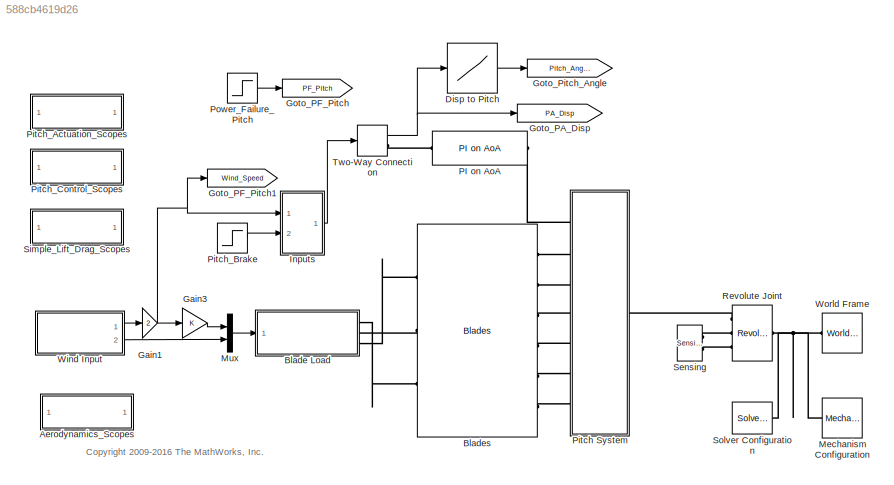
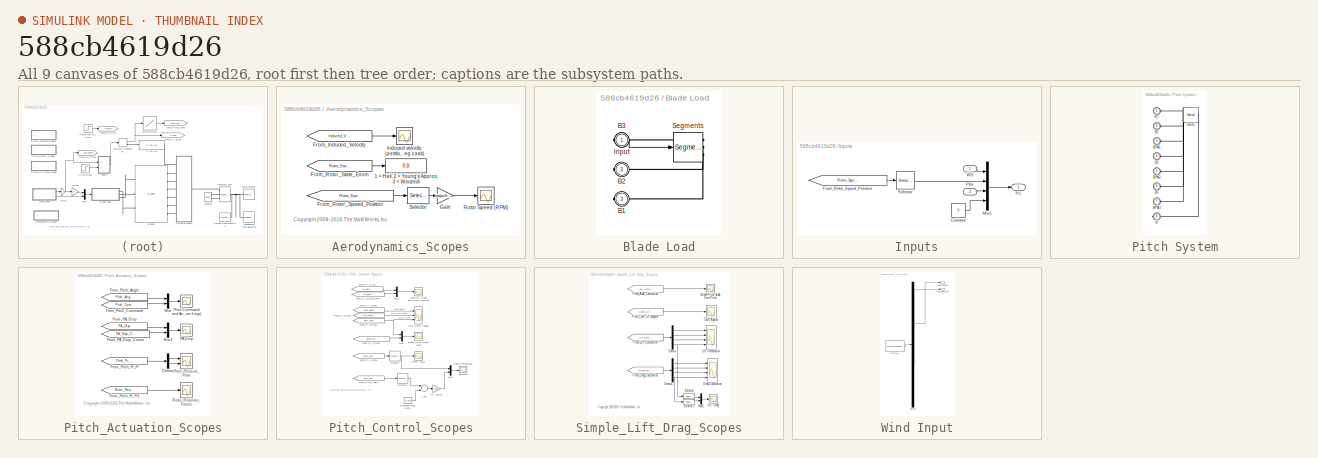
[diagram: thumbnail index - all 9 canvases of the model, root first then tree order]
MODEL slx_588cb4619d26
KIND model
CONFIG AbsTol = auto
CONFIG FixedStep = auto
CONFIG MaxStep = auto
CONFIG MinStep = auto
CONFIG PostLoadFcn = warning off Simulink:blocks:MatchingGotoNotFound \nwarning off Simulink:blocks:MatchingFromNotFound \nwarning off Simulink:Engine:UsingDefaultMaxStepSize 
CONFIG RelTol = 1e-5
CONFIG SampleTimeConstraint = Unconstrained
CONFIG Solver = ode23t
CONFIG SolverMode = Auto
CONFIG SolverName = ode23t
CONFIG StartTime = 0.0
CONFIG StopTime = 400
BLOCK [SubSystem] Aerodynamics_Scopes
  AncestorBlock = Wind_Lib/Simple_Lift_Drag_Scopes
  Ports = []
  RequestExecContextInheritance = off
  Variant = off
BLOCK [Display] Aerodynamics_Scopes/1 = Heli, 2 = Young's Approx, 3 = Windmill
  Decimation = 1
  Ports = [1]
BLOCK [From] Aerodynamics_Scopes/From_Induced_Velocity
  CloseFcn = tagdialog Close
  GotoTag = Induced_Velocity
BLOCK [From] Aerodynamics_Scopes/From_Rotor_Speed_Position
  CloseFcn = tagdialog Close
  GotoTag = Rotor_Speed_Position
  TagVisibility = global
BLOCK [From] Aerodynamics_Scopes/From_Rotor_State_Enum
  CloseFcn = tagdialog Close
  GotoTag = Rotor_State_Enum
  TagVisibility = global
BLOCK [Gain] Aerodynamics_Scopes/Gain
  Gain = radps2rpm
  OutDataTypeStr = Inherit: Inherit via internal rule
  ParamDataTypeStr = Inherit: Inherit via internal rule
  SaturateOnIntegerOverflow = off
BLOCK [Scope] Aerodynamics_Scopes/Rotor Speed (RPM)
  Ports = [1]
  ScopeSpecificationString = C++SS(StrPVP('Location','[811, 66, 1175, 340]'),StrPVP('Open','off'),MxPVP('AxesTitles',24,'struct(''axes1'',''%<SignalLabel>'')'),StrPVP('TimeRange','80'),StrPVP('YMin','0'),StrPVP('YMax','12'),StrPVP('SaveName','ScopeData11'),StrPVP('DataFormat','StructureWithTime'),StrPVP('LimitDataPoints','off'),StrPVP('BlockParamSampleTime','0'),StrPVP('DataLoggingDecimation','1'),StrPVP('BlockParamSampleInpu...<+323ch>
BLOCK [Selector] Aerodynamics_Scopes/Selector
  IndexOptions = Index vector (dialog)
  Indices = [2]
  InputPortWidth = 2
  OutputSizes = 1
  Ports = [1, 1]
BLOCK [Scope] Aerodynamics_Scopes/induced velocity (positive in neg x axis)
  Ports = [1]
  ScopeSpecificationString = C++SS(StrPVP('Location','[7, 726, 368, 992]'),StrPVP('Open','off'),MxPVP('AxesTitles',24,'struct(''axes1'',''%<SignalLabel>'')'),StrPVP('TimeRange','100'),StrPVP('YMin','-8'),StrPVP('YMax','4'),StrPVP('SaveName','ScopeData12'),StrPVP('DataFormat','StructureWithTime'),StrPVP('LimitDataPoints','off'),StrPVP('BlockParamSampleTime','0'),StrPVP('DataLoggingDecimation','1'),StrPVP('BlockParamSampleInput...<+322ch>
BLOCK [SubSystem] Blade Load
  AttributesFormatString = %<BlockChoice>
  BlockChoice = Segments
  MemberBlocks = Lift and Drag,Lift and Drag Simscape,Segments,Torque
  Ports = [1, 0, 0, 0, 0, 0, 3]
  RequestExecContextInheritance = off
  TemplateBlock = Wind_Lib/Blade Load
  Variant = off
BLOCK [PMIOPort] Blade Load/B1
  Port = 3
  Side = Right
BLOCK [PMIOPort] Blade Load/B2
  Port = 2
  Side = Right
BLOCK [PMIOPort] Blade Load/B3
  Port = 1
  Side = Right
BLOCK [Inport] Blade Load/Input
  IconDisplay = Port number
BLOCK [Reference] Blade Load/Segments  REF=Wind_Lib/Segments
  Ports = [1, 0, 0, 0, 0, 0, 3]
  SourceBlock = Wind_Lib/Segments
BLOCK [Reference] Blades  REF=Blades_Lib/Blades
  Ports = [0, 0, 0, 0, 0, 6, 3]
  SourceBlock = Blades_Lib/Blades
BLOCK [Lookup] Disp to Pitch
  InputValues = Actuator_Lookup.extension
  SaturateOnIntegerOverflow = off
  Table = Actuator_Lookup.angle
BLOCK [Gain] Gain1
  Gain = 2
  OutDataTypeStr = Inherit: Inherit via internal rule
  ParamDataTypeStr = Inherit: Inherit via internal rule
  SaturateOnIntegerOverflow = off
BLOCK [Gain] Gain3
  OutDataTypeStr = Inherit: Inherit via internal rule
  ParamDataTypeStr = Inherit: Inherit via internal rule
  SaturateOnIntegerOverflow = off
BLOCK [Goto] Goto_PA_Disp
  GotoTag = PA_Disp
  TagVisibility = global
BLOCK [Goto] Goto_PF_Pitch
  GotoTag = PF_Pitch
  TagVisibility = global
BLOCK [Goto] Goto_PF_Pitch1
  GotoTag = Wind_Speed
  TagVisibility = global
BLOCK [Goto] Goto_Pitch_Angle
  GotoTag = Pitch_Angle
  TagVisibility = global
BLOCK [SubSystem] Inputs
  Ports = [2, 1]
  RequestExecContextInheritance = off
  Variant = off
BLOCK [Constant] Inputs/Constant
  Value = 0
BLOCK [From] Inputs/From_Rotor_Speed_Position
  CloseFcn = tagdialog Close
  GotoTag = Rotor_Speed_Position
  TagVisibility = global
BLOCK [Mux] Inputs/Mux1
  DisplayOption = bar
  Ports = [4, 1]
BLOCK [Inport] Inputs/PBr
  IconDisplay = Port number
  Port = 2
BLOCK [Outport] Inputs/PC
  IconDisplay = Port number
BLOCK [Selector] Inputs/Selector
  IndexOptions = Index vector (dialog)
  Indices = [2]
  InputPortWidth = 2
  OutputSizes = 1
  Ports = [1, 1]
BLOCK [Inport] Inputs/WS
  IconDisplay = Port number
BLOCK [Reference] Mechanism Configuration  REF=sm_lib/Utilities/Mechanism
Configuration
  Ports = [0, 0, 0, 0, 0, 0, 1]
  SourceBlock = sm_lib/Utilities/Mechanism\nConfiguration
  SourceType = Mechanism\nConfiguration
BLOCK [Mux] Mux
  DisplayOption = bar
  Inputs = 2
  Ports = [2, 1]
BLOCK [Reference] PI on AoA  REF=Pitch_Controller_Lib/PI on AoA
  Ports = [0, 0, 0, 0, 0, 1, 1]
  SourceBlock = Pitch_Controller_Lib/PI on AoA
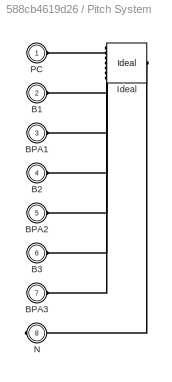
BLOCK [SubSystem] Pitch System
  AttributesFormatString = %<BlockChoice>
  BlockChoice = Ideal
  MemberBlocks = Hydraulic,Ideal,Locked
  Ports = [0, 0, 0, 0, 0, 7, 1]
  RequestExecContextInheritance = off
  ShowPortLabels = FromPortBlockName
  TemplateBlock = Pitch_System_Lib/Pitch System
  Variant = off
BLOCK [PMIOPort] Pitch System/B1
  Port = 2
  Side = Left
BLOCK [PMIOPort] Pitch System/B2
  Port = 4
  Side = Left
BLOCK [PMIOPort] Pitch System/B3
  Port = 6
  Side = Left
BLOCK [PMIOPort] Pitch System/BPA1
  Port = 3
  Side = Left
BLOCK [PMIOPort] Pitch System/BPA2
  Port = 5
  Side = Left
BLOCK [PMIOPort] Pitch System/BPA3
  Port = 7
  Side = Left
BLOCK [Reference] Pitch System/Ideal  REF=Pitch_System_Lib/Ideal
  Ports = [0, 0, 0, 0, 0, 7, 1]
  SourceBlock = Pitch_System_Lib/Ideal
BLOCK [PMIOPort] Pitch System/N
  Port = 8
  Side = Right
BLOCK [PMIOPort] Pitch System/PC
  Port = 1
  Side = Left
BLOCK [SubSystem] Pitch_Actuation_Scopes
  Ports = []
  RequestExecContextInheritance = off
  Variant = off
BLOCK [Demux] Pitch_Actuation_Scopes/Demux
  DisplayOption = bar
  Outputs = [2 1]
  Ports = [1, 2]
BLOCK [From] Pitch_Actuation_Scopes/From_PA_Disp
  CloseFcn = tagdialog Close
  GotoTag = PA_Disp
  TagVisibility = global
BLOCK [From] Pitch_Actuation_Scopes/From_PA_Disp_Comm
  CloseFcn = tagdialog Close
  GotoTag = PA_Disp_Comm
BLOCK [From] Pitch_Actuation_Scopes/From_Pitch_Angle
  CloseFcn = tagdialog Close
  GotoTag = Pitch_Angle
  TagVisibility = global
BLOCK [From] Pitch_Actuation_Scopes/From_Pitch_Command
  CloseFcn = tagdialog Close
  GotoTag = Pitch_Command
  TagVisibility = global
BLOCK [From] Pitch_Actuation_Scopes/From_Pitch_Pr_Fl
  CloseFcn = tagdialog Close
  GotoTag = Pitch_Pr_Fl
  TagVisibility = global
BLOCK [From] Pitch_Actuation_Scopes/From_Pitch_Pr_Fl1
  CloseFcn = tagdialog Close
  GotoTag = Rotor_Reaction_Forces
BLOCK [Mux] Pitch_Actuation_Scopes/Mux
  DisplayOption = bar
  Inputs = 2
  Ports = [2, 1]
BLOCK [Mux] Pitch_Actuation_Scopes/Mux2
  DisplayOption = bar
  Inputs = 2
  Ports = [2, 1]
BLOCK [Scope] Pitch_Actuation_Scopes/PA Disp
  Ports = [1]
  ScopeSpecificationString = C++SS(StrPVP('Location','[38, 56, 510, 479]'),StrPVP('Open','off'),MxPVP('AxesTitles',24,'struct(''axes1'',''%<SignalLabel>'')'),StrPVP('TimeRange','10'),StrPVP('YMin','-1.6'),StrPVP('YMax','-0.9'),StrPVP('SaveName','ScopeData1'),StrPVP('DataFormat','StructureWithTime'),StrPVP('LimitDataPoints','off'),StrPVP('BlockParamSampleTime','0'),StrPVP('DataLoggingDecimation','1'),StrPVP('BlockParamSampleIn...<+325ch>
BLOCK [Scope] Pitch_Actuation_Scopes/Pitch Command and Angle (Inner Loop)
  Ports = [1]
  ScopeSpecificationString = Simulink.scopes.TimeScopeBlockCfg('CurrentConfiguration', extmgr.ConfigurationSet(extmgr.Configuration('Core','General UI',true),extmgr.Configuration('Core','Source UI',true),extmgr.Configuration('Sources','WiredSimulink',true,'DataLoggingSaveFormat','StructureWithTime','DataLoggingDecimation','1'),extmgr.Configuration('Visuals','Time Domain',true,'SerializedDisplays',{struct('MinYLimReal','-20','...<+1641ch>
BLOCK [Scope] Pitch_Actuation_Scopes/Pitch_Pressure_Flow
  NumInputPorts = 2
  Ports = [2]
  ScopeSpecificationString = C++SS(StrPVP('Location','[516, 529, 997, 989]'),StrPVP('Open','off'),MxPVP('AxesTitles',24,'struct(''axes1'',''%<SignalLabel>'',''axes2'',''%<SignalLabel>'')'),StrPVP('TimeRange','10'),StrPVP('YMin','-5000000~-0.005'),StrPVP('YMax','25000000~0.015'),StrPVP('SaveName','ScopeData3'),StrPVP('DataFormat','StructureWithTime'),StrPVP('LimitDataPoints','off'),StrPVP('BlockParamSampleTime','0'),StrPVP('Da...<+377ch>
BLOCK [Scope] Pitch_Actuation_Scopes/Rotor_Reaction_Forces
  Ports = [1]
  ScopeSpecificationString = C++SS(StrPVP('Location','[516, 529, 997, 989]'),StrPVP('Open','off'),StrPVP('ZoomMode','xonly'),MxPVP('AxesTitles',24,'struct(''axes1'',''%<SignalLabel>'')'),StrPVP('TimeRange','10'),StrPVP('YMin','-5e+006'),StrPVP('YMax','2.5e+007'),StrPVP('SaveName','ScopeData15'),StrPVP('DataFormat','StructureWithTime'),StrPVP('LimitDataPoints','off'),StrPVP('BlockParamSampleTime','0'),StrPVP('DataLoggingDecima...<+362ch>
BLOCK [Step] Pitch_Brake
  After = 0
  SampleTime = 0
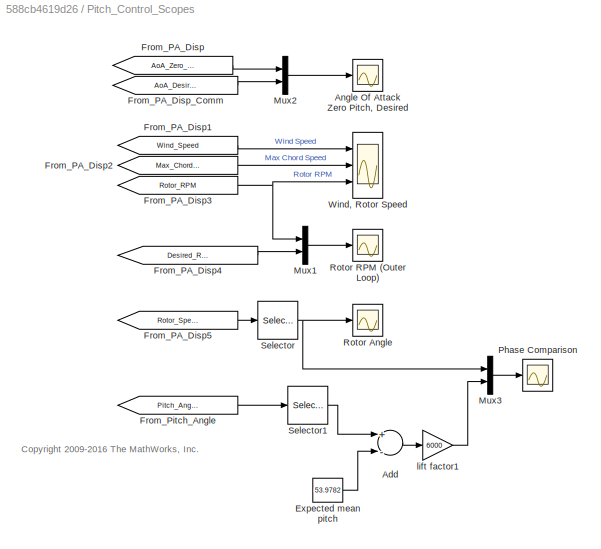
BLOCK [SubSystem] Pitch_Control_Scopes
  Ports = []
  RequestExecContextInheritance = off
  Variant = off
BLOCK [Sum] Pitch_Control_Scopes/Add
  InputSameDT = off
  Inputs = +-
  OutDataTypeStr = Inherit: Inherit via internal rule
  Ports = [2, 1]
  SaturateOnIntegerOverflow = off
BLOCK [Scope] Pitch_Control_Scopes/Angle Of Attack Zero Pitch, Desired
  Ports = [1]
  ScopeSpecificationString = C++SS(StrPVP('Location','[25, 642, 426, 909]'),StrPVP('Open','off'),StrPVP('ZoomMode','yonly'),MxPVP('AxesTitles',24,'struct(''axes1'',''%<SignalLabel>'')'),StrPVP('TimeRange','400'),StrPVP('YMin','-40'),StrPVP('YMax','100'),StrPVP('SaveName','ScopeData1'),StrPVP('DataFormat','StructureWithTime'),StrPVP('LimitDataPoints','off'),StrPVP('BlockParamSampleTime','0'),StrPVP('DataLoggingDecimation','1')...<+352ch>
BLOCK [Constant] Pitch_Control_Scopes/Expected mean pitch
  Value = 53.9782
BLOCK [From] Pitch_Control_Scopes/From_PA_Disp
  CloseFcn = tagdialog Close
  GotoTag = AoA_Zero_Pitch
BLOCK [From] Pitch_Control_Scopes/From_PA_Disp1
  CloseFcn = tagdialog Close
  GotoTag = Wind_Speed
  TagVisibility = global
BLOCK [From] Pitch_Control_Scopes/From_PA_Disp2
  CloseFcn = tagdialog Close
  GotoTag = Max_Chord_Speed
  TagVisibility = global
BLOCK [From] Pitch_Control_Scopes/From_PA_Disp3
  CloseFcn = tagdialog Close
  GotoTag = Rotor_RPM
  TagVisibility = global
BLOCK [From] Pitch_Control_Scopes/From_PA_Disp4
  CloseFcn = tagdialog Close
  GotoTag = Desired_Rotor_RPM
  TagVisibility = global
BLOCK [From] Pitch_Control_Scopes/From_PA_Disp5
  CloseFcn = tagdialog Close
  GotoTag = Rotor_Speed_Position
  TagVisibility = global
BLOCK [From] Pitch_Control_Scopes/From_PA_Disp_Comm
  CloseFcn = tagdialog Close
  GotoTag = AoA_Desired
  TagVisibility = global
BLOCK [From] Pitch_Control_Scopes/From_Pitch_Angle
  CloseFcn = tagdialog Close
  GotoTag = Pitch_Angle
  TagVisibility = global
BLOCK [Mux] Pitch_Control_Scopes/Mux1
  DisplayOption = bar
  Inputs = 2
  Ports = [2, 1]
BLOCK [Mux] Pitch_Control_Scopes/Mux2
  DisplayOption = bar
  Inputs = 2
  Ports = [2, 1]
BLOCK [Mux] Pitch_Control_Scopes/Mux3
  DisplayOption = bar
  Inputs = 2
  Ports = [2, 1]
BLOCK [Scope] Pitch_Control_Scopes/Phase Comparison
  Ports = [1]
  ScopeSpecificationString = C++SS(StrPVP('Location','[747, 210, 1533, 544]'),StrPVP('Open','off'),StrPVP('ZoomMode','xonly'),MxPVP('AxesTitles',24,'struct(''axes1'',''%<SignalLabel>'')'),StrPVP('TimeRange','10.02528256989888'),StrPVP('YMin','-4'),StrPVP('YMax','4'),StrPVP('SaveName','ScopeData16'),StrPVP('DataFormat','StructureWithTime'),StrPVP('LimitDataPoints','off'),StrPVP('BlockParamSampleTime','0'),StrPVP('DataLoggingDe...<+366ch>
BLOCK [Scope] Pitch_Control_Scopes/Rotor Angle
  Ports = [1]
  ScopeSpecificationString = C++SS(StrPVP('Location','[831, 319, 1387, 586]'),StrPVP('Open','off'),StrPVP('ZoomMode','xonly'),MxPVP('AxesTitles',24,'struct(''axes1'',''%<SignalLabel>'')'),StrPVP('TimeRange','10.02528256989888'),StrPVP('YMin','-4'),StrPVP('YMax','4'),StrPVP('SaveName','ScopeData7'),StrPVP('DataFormat','StructureWithTime'),StrPVP('LimitDataPoints','off'),StrPVP('BlockParamSampleTime','0'),StrPVP('DataLoggingDec...<+365ch>
BLOCK [Scope] Pitch_Control_Scopes/Rotor RPM (Outer Loop)
  Ports = [1]
  ScopeSpecificationString = C++SS(StrPVP('Location','[475, 363, 1019, 608]'),StrPVP('Open','off'),StrPVP('ZoomMode','yonly'),MxPVP('AxesTitles',24,'struct(''axes1'',''%<SignalLabel>'')'),MxPVP('ScopeGraphics',28,'struct(''FigureColor'',''[0.5 0.5 0.5]'',''AxesColor'',''[0 0 0]'',''AxesTickColor'',''[1 1 1]'',''LineColors'',''[1 1 0;1 0 1;0 1 1;1 0 0;0 1 0;0 0 1]'',''LineStyles'',''-|-|-|-|-|-'',''LineWidths'',''[0.5 0.5 0.5 ...<+643ch>
BLOCK [Selector] Pitch_Control_Scopes/Selector
  IndexOptions = Index vector (dialog)
  Indices = [1]
  InputPortWidth = 2
  OutputSizes = 1
  Ports = [1, 1]
BLOCK [Selector] Pitch_Control_Scopes/Selector1
  IndexOptions = Index vector (dialog)
  Indices = [1]
  InputPortWidth = 3
  OutputSizes = 1
  Ports = [1, 1]
BLOCK [Scope] Pitch_Control_Scopes/Wind, Rotor Speed
  NumInputPorts = 3
  Ports = [3]
  ScopeSpecificationString = C++SS(StrPVP('Location','[392, 580, 861, 989]'),StrPVP('Open','off'),StrPVP('ZoomMode','yonly'),MxPVP('AxesTitles',24,'struct(''axes1'',''%<SignalLabel>'',''axes2'',''%<SignalLabel>'',''axes3'',''%<SignalLabel>'')'),StrPVP('TimeRange','600'),StrPVP('YMin','5~-10~-10'),StrPVP('YMax','15~20~20'),StrPVP('SaveName','ScopeData2'),StrPVP('DataFormat','StructureWithTime'),StrPVP('LimitDataPoints','off'),...<+422ch>
BLOCK [Gain] Pitch_Control_Scopes/lift factor1
  Gain = 6000
  OutDataTypeStr = Inherit: Inherit via internal rule
  ParamDataTypeStr = Inherit: Inherit via internal rule
  SaturateOnIntegerOverflow = off
BLOCK [Step] Power_Failure_Pitch
  After = 24
  Before = 24
  SampleTime = 0
  Time = 5
BLOCK [Reference] Revolute Joint  REF=sm_lib/Joints/Revolute Joint
  Ports = [0, 0, 0, 0, 0, 1, 3]
  SourceBlock = sm_lib/Joints/Revolute Joint
  SourceType = Revolute Joint
BLOCK [Reference] Sensing  REF=Hub_Axis_Lib/Rotate/Sensing
  Ports = [0, 0, 0, 0, 0, 2]
  SourceBlock = Hub_Axis_Lib/Rotate/Sensing
  SourceType = SubSystem
BLOCK [SubSystem] Simple_Lift_Drag_Scopes
  AncestorBlock = Wind_Lib/Simple_Lift_Drag_Scopes
  Ports = []
  RequestExecContextInheritance = off
  Variant = off
BLOCK [Scope] Simple_Lift_Drag_Scopes/Blade Pitch, AoA Zero Pitch
  Ports = [1]
  ScopeSpecificationString = C++SS(StrPVP('Location','[718, 513, 1103, 780]'),StrPVP('Open','off'),MxPVP('AxesTitles',24,'struct(''axes1'',''%<SignalLabel>'')'),StrPVP('TimeRange','400'),StrPVP('YMin','0'),StrPVP('YMax','100'),StrPVP('SaveName','ScopeData3'),StrPVP('DataFormat','StructureWithTime'),StrPVP('LimitDataPoints','off'),StrPVP('BlockParamSampleTime','0'),StrPVP('DataLoggingDecimation','1'),StrPVP('BlockParamSampleIn...<+325ch>
BLOCK [Scope] Simple_Lift_Drag_Scopes/Coeff Approx
  Ports = [1]
  ScopeSpecificationString = C++SS(StrPVP('Location','[692, 281, 1164, 834]'),StrPVP('Open','off'),StrPVP('ZoomMode','yonly'),MxPVP('AxesTitles',24,'struct(''axes1'',''%<SignalLabel>'')'),StrPVP('TimeRange','400'),StrPVP('YMin','-0.1139986551164904'),StrPVP('YMax','0.01794057021302797'),StrPVP('SaveName','ScopeData4'),StrPVP('DataFormat','StructureWithTime'),StrPVP('LimitDataPoints','off'),StrPVP('BlockParamSampleTime','0'),S...<+386ch>
BLOCK [Demux] Simple_Lift_Drag_Scopes/Demux
  DisplayOption = bar
  Outputs = [1 3 3 3]
  Ports = [1, 4]
BLOCK [Demux] Simple_Lift_Drag_Scopes/Demux1
  DisplayOption = bar
  Outputs = [1 3 3 3]
  Ports = [1, 4]
BLOCK [Scope] Simple_Lift_Drag_Scopes/Drag Calculation
  NumInputPorts = 4
  Ports = [4]
  ScopeSpecificationString = C++SS(StrPVP('Location','[84, 409, 556, 962]'),StrPVP('Open','off'),StrPVP('ZoomMode','yonly'),MxPVP('AxesTitles',24,'struct(''axes1'',''%<SignalLabel>'',''axes2'',''%<SignalLabel>'',''axes3'',''%<SignalLabel>'',''axes4'',''%<SignalLabel>'')'),StrPVP('TimeRange','400'),StrPVP('YMin','-2000~-50~0~0'),StrPVP('YMax','4000~100~6000~6000'),StrPVP('SaveName','ScopeData5'),StrPVP('DataFormat','StructureW...<+464ch>
BLOCK [From] Simple_Lift_Drag_Scopes/From_AoA_Calculation
  CloseFcn = tagdialog Close
  GotoTag = AoA_Calculation
BLOCK [From] Simple_Lift_Drag_Scopes/From_Coeff_Lift_Approx
  CloseFcn = tagdialog Close
  GotoTag = Coeff_Lift_Approx
BLOCK [From] Simple_Lift_Drag_Scopes/From_Drag_Calculation
  CloseFcn = tagdialog Close
  GotoTag = Drag_Calculation
BLOCK [From] Simple_Lift_Drag_Scopes/From_Lift_Calculation
  CloseFcn = tagdialog Close
  GotoTag = Lift_Calculation
BLOCK [Scope] Simple_Lift_Drag_Scopes/Lift Calculation
  NumInputPorts = 4
  Ports = [4]
  ScopeSpecificationString = C++SS(StrPVP('Location','[857, 373, 1367, 926]'),StrPVP('Open','off'),StrPVP('ZoomMode','yonly'),MxPVP('AxesTitles',24,'struct(''axes1'',''%<SignalLabel>'',''axes2'',''%<SignalLabel>'',''axes3'',''%<SignalLabel>'',''axes4'',''%<SignalLabel>'')'),StrPVP('TimeRange','400'),StrPVP('YMin','0~-50~-0.5~-50000'),StrPVP('YMax','2000~100~1.5~100000'),StrPVP('SaveName','ScopeData2'),StrPVP('DataFormat','Str...<+471ch>
BLOCK [Scope] Simple_Lift_Drag_Scopes/Lift, Drag
  Ports = [1]
  ScopeSpecificationString = C++SS(StrPVP('Location','[828, 640, 1384, 907]'),StrPVP('Open','off'),StrPVP('ZoomMode','xonly'),MxPVP('AxesTitles',24,'struct(''axes1'',''%<SignalLabel>'')'),StrPVP('TimeRange','160'),StrPVP('YMin','-250.4351759669439'),StrPVP('YMax','408.3026221352307'),StrPVP('SaveName','ScopeData1'),StrPVP('DataFormat','StructureWithTime'),StrPVP('LimitDataPoints','off'),StrPVP('BlockParamSampleTime','0'),StrP...<+383ch>
BLOCK [Mux] Simple_Lift_Drag_Scopes/Mux1
  DisplayOption = bar
  Inputs = 2
  Ports = [2, 1]
BLOCK [Selector] Simple_Lift_Drag_Scopes/Selector
  IndexOptions = Index vector (dialog)
  Indices = [1]
  InputPortWidth = 3
  OutputSizes = 1
  Ports = [1, 1]
BLOCK [Selector] Simple_Lift_Drag_Scopes/Selector1
  IndexOptions = Index vector (dialog)
  Indices = [1 3]
  InputPortWidth = 3
  OutputSizes = 1
  Ports = [1, 1]
BLOCK [Reference] Solver Configuration  REF=nesl_utility/Solver
Configuration
  Ports = [0, 0, 0, 0, 0, 0, 1]
  SourceBlock = nesl_utility/Solver\nConfiguration
  SourceType = Solver\nConfiguration
BLOCK [TwoWayConnection] Two-Way Connection
  Ports = [1, 1, 0, 0, 0, 0, 1]
BLOCK [SubSystem] Wind Input
  ClipboardFcn = sigbuilder_block('clipboard');
  CloseFcn = sigbuilder_block('close');
  ContinueFcn = sigbuilder_block('continue')
  CopyFcn = sigbuilder_block('copy');
  DeleteFcn = sigbuilder_block('delete');
  LoadFcn = sigbuilder_block('load');
  MaskHideContents = on
  ModelCloseFcn = sigbuilder_block('modelClose');
  NameChangeFcn = sigbuilder_block('namechange');
  OpenFcn = sigbuilder_block('open',[33 180 762 399.75 ]);
  PauseFcn = sigbuilder_block('pause')
  Ports = [0, 2]
  PreSaveFcn = sigbuilder_block('preSave');
  RequestExecContextInheritance = off
  StartFcn = sigbuilder_block('start');
  StopFcn = sigbuilder_block('stop');
  Tag = STV Subsys
  Variant = off
BLOCK [Demux] Wind Input/Demux
  Outputs = 2
  Ports = [1, 2]
  Tag = STV Demux
BLOCK [FromWorkspace] Wind Input/FromWs
  SampleTime = 0
  Tag = STV FromWs
  VariableName = tuvar
  ZeroCross = on
BLOCK [Outport] Wind Input/Wind Direction
  IconDisplay = Port number
  Port = 2
  Tag = STV Outport
BLOCK [Outport] Wind Input/Wind Speed
  IconDisplay = Port number
  Tag = STV Outport
BLOCK [Reference] World Frame  REF=sm_lib/Frames and
Transforms/World Frame
  Ports = [0, 0, 0, 0, 0, 0, 1]
  SourceBlock = sm_lib/Frames and\nTransforms/World Frame
  SourceType = World Frame
ANNOTATION (root): <copyright redacted>
ANNOTATION Aerodynamics_Scopes: <copyright redacted>
ANNOTATION Pitch_Actuation_Scopes: <copyright redacted>
ANNOTATION Pitch_Control_Scopes: <copyright redacted>
ANNOTATION Simple_Lift_Drag_Scopes: <copyright redacted>
LINE Disp to Pitch:1 -> Goto_Pitch_Angle:1
NET Gain1:1 -> Gain3:1, Goto_PF_Pitch1:1, Inputs:1
LINE Gain3:1 -> Mux:1
LINE Inputs/Constant:1 -> Inputs/Mux1:4
LINE Inputs/From_Rotor_Speed_Position:1 -> Inputs/Selector:1
LINE Inputs/Mux1:1 -> Inputs/PC:1
LINE Inputs/PBr:1 -> Inputs/Mux1:3
LINE Inputs/Selector:1 -> Inputs/Mux1:2
LINE Inputs/WS:1 -> Inputs/Mux1:1
LINE Inputs:1 -> Two-Way Connection:1
LINE Mux:1 -> Blade Load:1
LINE Pitch_Actuation_Scopes/Demux:1 -> Pitch_Actuation_Scopes/Pitch_Pressure_Flow:1
LINE Pitch_Actuation_Scopes/Demux:2 -> Pitch_Actuation_Scopes/Pitch_Pressure_Flow:2
LINE Pitch_Actuation_Scopes/From_PA_Disp:1 -> Pitch_Actuation_Scopes/Mux2:1
LINE Pitch_Actuation_Scopes/From_PA_Disp_Comm:1 -> Pitch_Actuation_Scopes/Mux2:2
LINE Pitch_Actuation_Scopes/From_Pitch_Angle:1 -> Pitch_Actuation_Scopes/Mux:1
LINE Pitch_Actuation_Scopes/From_Pitch_Command:1 -> Pitch_Actuation_Scopes/Mux:2
LINE Pitch_Actuation_Scopes/From_Pitch_Pr_Fl1:1 -> Pitch_Actuation_Scopes/Rotor_Reaction_Forces:1
LINE Pitch_Actuation_Scopes/From_Pitch_Pr_Fl:1 -> Pitch_Actuation_Scopes/Demux:1
LINE Pitch_Actuation_Scopes/Mux2:1 -> Pitch_Actuation_Scopes/PA Disp:1
LINE Pitch_Actuation_Scopes/Mux:1 -> Pitch_Actuation_Scopes/Pitch Command and Angle (Inner Loop):1
LINE Pitch_Brake:1 -> Inputs:2
LINE Pitch_Control_Scopes/Add:1 -> Pitch_Control_Scopes/lift factor1:1
LINE Pitch_Control_Scopes/Expected mean pitch:1 -> Pitch_Control_Scopes/Add:2
LINE Pitch_Control_Scopes/From_PA_Disp1:1 -> Pitch_Control_Scopes/Wind, Rotor Speed:1
LINE Pitch_Control_Scopes/From_PA_Disp2:1 -> Pitch_Control_Scopes/Wind, Rotor Speed:2
NET Pitch_Control_Scopes/From_PA_Disp3:1 -> Pitch_Control_Scopes/Mux1:1, Pitch_Control_Scopes/Wind, Rotor Speed:3
LINE Pitch_Control_Scopes/From_PA_Disp4:1 -> Pitch_Control_Scopes/Mux1:2
LINE Pitch_Control_Scopes/From_PA_Disp5:1 -> Pitch_Control_Scopes/Selector:1
LINE Pitch_Control_Scopes/From_PA_Disp:1 -> Pitch_Control_Scopes/Mux2:1
LINE Pitch_Control_Scopes/From_PA_Disp_Comm:1 -> Pitch_Control_Scopes/Mux2:2
LINE Pitch_Control_Scopes/From_Pitch_Angle:1 -> Pitch_Control_Scopes/Selector1:1
LINE Pitch_Control_Scopes/Mux1:1 -> Pitch_Control_Scopes/Rotor RPM (Outer Loop):1
LINE Pitch_Control_Scopes/Mux2:1 -> Pitch_Control_Scopes/Angle Of Attack Zero Pitch, Desired:1
LINE Pitch_Control_Scopes/Mux3:1 -> Pitch_Control_Scopes/Phase Comparison:1
LINE Pitch_Control_Scopes/Selector1:1 -> Pitch_Control_Scopes/Add:1
NET Pitch_Control_Scopes/Selector:1 -> Pitch_Control_Scopes/Mux3:1, Pitch_Control_Scopes/Rotor Angle:1
LINE Pitch_Control_Scopes/lift factor1:1 -> Pitch_Control_Scopes/Mux3:2
LINE Power_Failure_Pitch:1 -> Goto_PF_Pitch:1
NET Two-Way Connection:1 -> Disp to Pitch:1, Goto_PA_Disp:1
LINE Wind Input:1 -> Gain1:1
LINE Wind Input:2 -> Mux:2
PLINE Blade Load:RConn1 -- Blades:RConn3
PLINE Blade Load:RConn2 -- Blades:RConn2
PLINE Blade Load:RConn3 -- Blades:RConn1
PLINE Blades:LConn1 -- Pitch System:LConn2
PLINE Blades:LConn2 -- Pitch System:LConn3
PLINE Blades:LConn3 -- Pitch System:LConn4
PLINE Blades:LConn4 -- Pitch System:LConn5
PLINE Blades:LConn5 -- Pitch System:LConn6
PLINE Blades:LConn6 -- Pitch System:LConn7
PNET net1: Mechanism Configuration:RConn1 -- Revolute Joint:LConn1 -- Solver Configuration:RConn1 -- World Frame:RConn1
PLINE PI on AoA:LConn1 -- Two-Way Connection:RConn1
PLINE PI on AoA:RConn1 -- Pitch System:LConn1
PLINE Pitch System:RConn1 -- Revolute Joint:RConn1
PLINE Revolute Joint:RConn2 -- Sensing:LConn1
PLINE Revolute Joint:RConn3 -- Sensing:LConn2
note: NET lines group one-source signal fan-out (src -> all destinations, sorted); 1:1 wires keep LINE; PNET lines group multi-terminal physical nets as a canonical sorted terminal list (undirected conserving connections); 2-terminal nets keep the pairwise PLINE form
